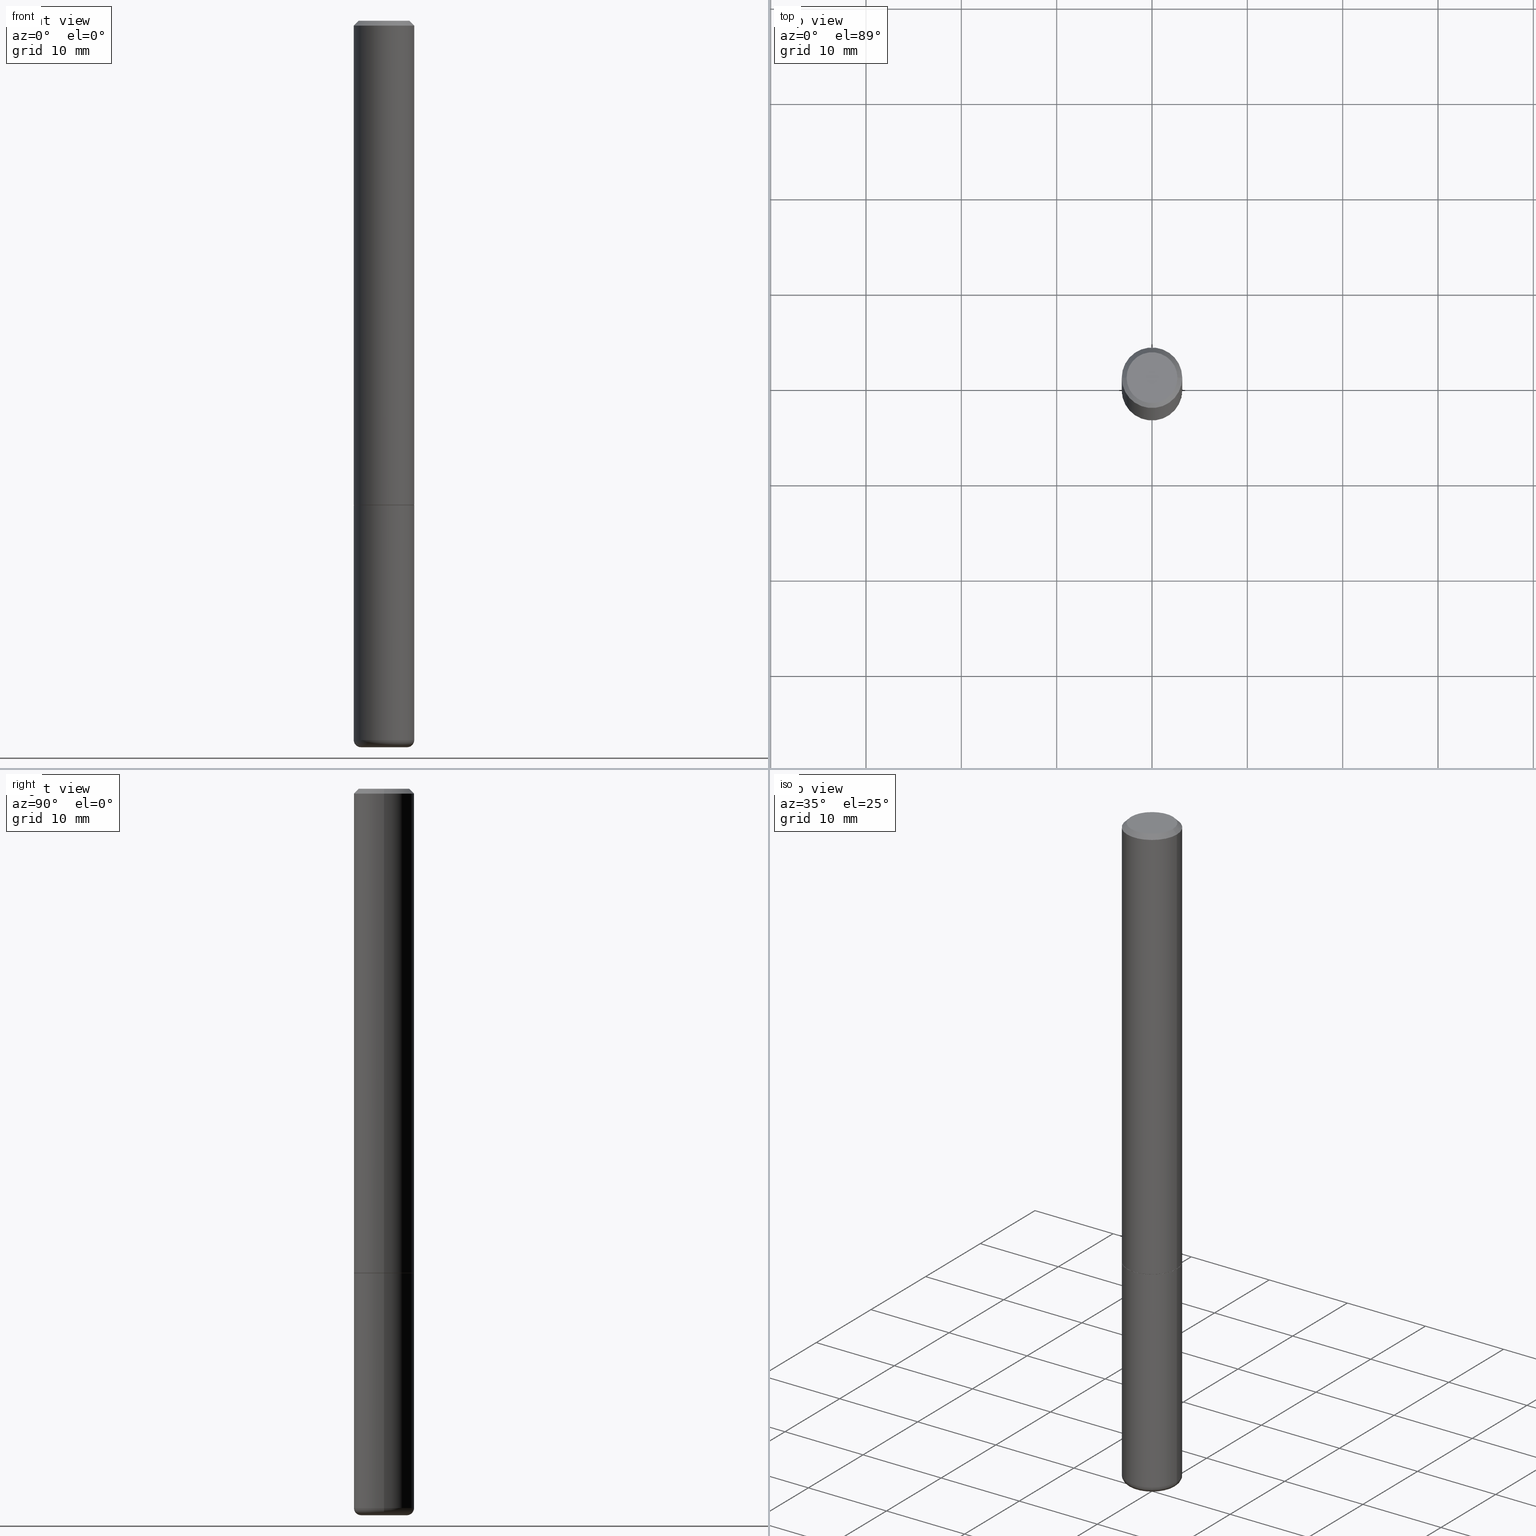
[diagram: canonical four-view strip — front | top / right | iso, engineering-drawing reading convention]
A machine part, canonical four-view strip (front | top / right | iso — engineering-drawing reading convention). The complete STEP part file that produces these views, byte-faithful:
ISO-10303-21;
HEADER;
FILE_DESCRIPTION (( 'STEP AP203' ),
    '1' );
FILE_NAME ('77135.STEP',
    '2024-03-06T16:07:11',
    ( '' ),
    ( '' ),
    'SwSTEP 2.0',
    'SolidWorks 2023',
    '' );
FILE_SCHEMA (( 'CONFIG_CONTROL_DESIGN' ));
ENDSEC;

DATA;
#1 = CARTESIAN_POINT ( 'NONE',  ( 4.890937612370273194E-29, -6.982962677686291165E-15, -2.000000000000000000 ) ) ;
#2 = EDGE_CURVE ( 'NONE', #89, #54, #96, .T. ) ;
#3 = CLOSED_SHELL ( 'NONE', ( #44, #114, #267, #366, #16, #149 ) ) ;
#4 = AXIS2_PLACEMENT_3D ( 'NONE', #282, #88, #214 ) ;
#5 = LOCAL_TIME ( 11, 7, 11.00000000000000000, #242 ) ;
#6 = CARTESIAN_POINT ( 'NONE',  ( 1.938465436436783344E-28, 6.779332785560663116E-15, -2.999999999999999556 ) ) ;
#7 = APPROVAL_ROLE ( '' ) ;
#8 = FACE_OUTER_BOUND ( 'NONE', #107, .T. ) ;
#9 = DATE_AND_TIME ( #84, #83 ) ;
#10 = CARTESIAN_POINT ( 'NONE',  ( 4.890937612370273194E-29, -6.982962677686291165E-15, -2.000000000000000000 ) ) ;
#11 = SHAPE_DEFINITION_REPRESENTATION ( #272, #253 ) ;
#12 = ORIENTED_EDGE ( 'NONE', *, *, #363, .F. ) ;
#13 = CONICAL_SURFACE ( 'NONE', #383, 0.1249999999999999584, 0.7853981633974460586 ) ;
#14 = APPROVAL_PERSON_ORGANIZATION ( #174, #387, #370 ) ;
#15 = APPROVAL_DATE_TIME ( #170, #387 ) ;
#16 = ADVANCED_FACE ( 'NONE', ( #179 ), #215, .T. ) ;
#17 = ORIENTED_EDGE ( 'NONE', *, *, #59, .T. ) ;
#18 = PERSON_AND_ORGANIZATION ( #152, #380 ) ;
#19 = ORIENTED_EDGE ( 'NONE', *, *, #241, .F. ) ;
#20 = DIRECTION ( 'NONE',  ( -2.445468806185136597E-29, 3.491481338843145583E-15, 1.000000000000000000 ) ) ;
#21 = DIMENSIONAL_EXPONENTS ( 1.000000000000000000, 0.000000000000000000, 0.000000000000000000, 0.000000000000000000, 0.000000000000000000, 0.000000000000000000, 0.000000000000000000 ) ;
#22 = ADVANCED_FACE ( 'NONE', ( #25 ), #147, .T. ) ;
#23 = ORIENTED_EDGE ( 'NONE', *, *, #59, .F. ) ;
#24 = AXIS2_PLACEMENT_3D ( 'NONE', #1, #301, #129 ) ;
#25 = FACE_OUTER_BOUND ( 'NONE', #273, .T. ) ;
#26 = ORIENTED_EDGE ( 'NONE', *, *, #363, .T. ) ;
#27 = AXIS2_PLACEMENT_3D ( 'NONE', #10, #159, #35 ) ;
#28 = CARTESIAN_POINT ( 'NONE',  ( 7.263042354369856275E-29, -1.036969957636414298E-14, -2.970000000000000195 ) ) ;
#29 = DIRECTION ( 'NONE',  ( 1.000000000000000000, -6.982962677686267499E-15, 4.874400871621236533E-29 ) ) ;
#30 = ORIENTED_EDGE ( 'NONE', *, *, #221, .F. ) ;
#31 = CARTESIAN_POINT ( 'NONE',  ( -0.1250000000000000000, -7.788152707325093026E-15, -2.000000000000000444 ) ) ;
#32 = AXIS2_PLACEMENT_3D ( 'NONE', #153, #295, #223 ) ;
#33 = EDGE_CURVE ( 'NONE', #89, #216, #57, .T. ) ;
#34 = CARTESIAN_POINT ( 'NONE',  ( 7.263042354369856275E-29, -1.036969957636414298E-14, -2.970000000000000195 ) ) ;
#35 = DIRECTION ( 'NONE',  ( 1.000000000000000000, -6.982962677686265922E-15, 4.876176775795935793E-29 ) ) ;
#36 = DIRECTION ( 'NONE',  ( 1.000000000000000000, -6.982962677686273810E-15, 0.000000000000000000 ) ) ;
#37 = PERSON_AND_ORGANIZATION ( #152, #380 ) ;
#38 = CONICAL_SURFACE ( 'NONE', #302, 0.1239999999999999991, 0.7853981633976787613 ) ;
#39 = DIRECTION ( 'NONE',  ( -2.445468806185136597E-29, 3.491481338843145583E-15, 1.000000000000000000 ) ) ;
#40 = CALENDAR_DATE ( 2024, 6, 3 ) ;
#41 = CARTESIAN_POINT ( 'NONE',  ( -0.1050000000000000377, 7.681258945454890818E-16, -5.122214988121018004E-17 ) ) ;
#42 = DATE_AND_TIME ( #40, #5 ) ;
#43 = LINE ( 'NONE', #274, #111 ) ;
#44 = ADVANCED_FACE ( 'NONE', ( #351 ), #353, .T. ) ;
#45 = CALENDAR_DATE ( 2024, 6, 3 ) ;
#46 = ORIENTED_EDGE ( 'NONE', *, *, #255, .T. ) ;
#47 = LOCAL_TIME ( 11, 7, 11.00000000000000000, #108 ) ;
#48 = DIRECTION ( 'NONE',  ( 1.000000000000000000, 0.000000000000000000, 0.000000000000000000 ) ) ;
#49 = EDGE_LOOP ( 'NONE', ( #256, #238, #112, #106 ) ) ;
#50 = DIRECTION ( 'NONE',  ( -2.445468806185136597E-29, 3.491481338843145583E-15, 1.000000000000000000 ) ) ;
#51 = ORIENTED_EDGE ( 'NONE', *, *, #2, .F. ) ;
#52 = CARTESIAN_POINT ( 'NONE',  ( 0.1249999999999998473, -1.124256991107492474E-14, -2.970000000000000195 ) ) ;
#53 = ORIENTED_EDGE ( 'NONE', *, *, #33, .F. ) ;
#54 = VERTEX_POINT ( 'NONE', #63 ) ;
#55 = FACE_OUTER_BOUND ( 'NONE', #49, .T. ) ;
#56 = AXIS2_PLACEMENT_3D ( 'NONE', #368, #39, #131 ) ;
#57 = CIRCLE ( 'NONE', #181, 0.1250000000000002498 ) ;
#58 = CIRCLE ( 'NONE', #373, 0.1250000000000000000 ) ;
#59 = EDGE_CURVE ( 'NONE', #343, #345, #233, .T. ) ;
#60 = EDGE_CURVE ( 'NONE', #216, #89, #199, .T. ) ;
#61 = DIRECTION ( 'NONE',  ( -2.445468806185136597E-29, 3.491481338843145583E-15, 1.000000000000000000 ) ) ;
#62 = CC_DESIGN_SECURITY_CLASSIFICATION ( #138, ( #99 ) ) ;
#63 = CARTESIAN_POINT ( 'NONE',  ( -0.1249999999999999584, 8.030407079339200406E-16, -0.02000000000000006287 ) ) ;
#64 = CYLINDRICAL_SURFACE ( 'NONE', #200, 0.1250000000000000000 ) ;
#65 = ORIENTED_EDGE ( 'NONE', *, *, #415, .T. ) ;
#66 = CARTESIAN_POINT ( 'NONE',  ( 4.890937612370288923E-31, -6.982962677686312563E-17, -0.02000000000000006287 ) ) ;
#67 = CARTESIAN_POINT ( 'NONE',  ( 0.1239999999999999991, -7.848850049719387701E-15, -2.000000000000000000 ) ) ;
#68 = DIRECTION ( 'NONE',  ( -1.000000000000000000, 6.982962677686267499E-15, 0.000000000000000000 ) ) ;
#69 = CIRCLE ( 'NONE', #361, 0.1250000000000000000 ) ;
#70 = CARTESIAN_POINT ( 'NONE',  ( 7.332110811570581229E-16, 0.1050000000000000377, -3.922166155191328542E-16 ) ) ;
#71 = PLANE ( 'NONE',  #292 ) ;
#72 = CARTESIAN_POINT ( 'NONE',  ( 0.1249999999999999584, -9.273918764983043491E-16, -0.02000000000000006287 ) ) ;
#73 = AXIS2_PLACEMENT_3D ( 'NONE', #294, #252, #91 ) ;
#74 = CIRCLE ( 'NONE', #261, 0.1250000000000000000 ) ;
#75 = CARTESIAN_POINT ( 'NONE',  ( 7.263042354369856275E-29, -1.036969957636414298E-14, -2.970000000000000195 ) ) ;
#76 = ADVANCED_FACE ( 'NONE', ( #8 ), #71, .F. ) ;
#77 = APPROVAL_STATUS ( 'not_yet_approved' ) ;
#78 = PERSON_AND_ORGANIZATION_ROLE ( 'creator' ) ;
#79 = DIRECTION ( 'NONE',  ( 1.000000000000000000, -6.982962677686266711E-15, 4.876176775795935232E-29 ) ) ;
#80 = COORDINATED_UNIVERSAL_TIME_OFFSET ( 5, 0, .BEHIND. ) ;
#81 = VERTEX_POINT ( 'NONE', #304 ) ;
#82 = CIRCLE ( 'NONE', #150, 0.09499999999999998723 ) ;
#83 = LOCAL_TIME ( 11, 7, 11.00000000000000000, #164 ) ;
#84 = CALENDAR_DATE ( 2024, 6, 3 ) ;
#85 = EDGE_CURVE ( 'NONE', #137, #54, #191, .T. ) ;
#86 = ORIENTED_EDGE ( 'NONE', *, *, #160, .F. ) ;
#87 = VERTEX_POINT ( 'NONE', #103 ) ;
#88 = DIRECTION ( 'NONE',  ( 2.445468806185136597E-29, -3.491481338843145583E-15, -1.000000000000000000 ) ) ;
#89 = VERTEX_POINT ( 'NONE', #224 ) ;
#90 = AXIS2_PLACEMENT_3D ( 'NONE', #28, #61, #317 ) ;
#91 = DIRECTION ( 'NONE',  ( 1.000000000000000000, -6.982962677686266711E-15, 4.876176775795935232E-29 ) ) ;
#92 = DIRECTION ( 'NONE',  ( -2.445468806185136597E-29, 3.491481338843145583E-15, 1.000000000000000000 ) ) ;
#93 = CONICAL_SURFACE ( 'NONE', #32, 0.1239999999999999991, 0.7853981633976787613 ) ;
#94 = FACE_OUTER_BOUND ( 'NONE', #372, .T. ) ;
#95 = DIRECTION ( 'NONE',  ( -2.445468806185136597E-29, 3.491481338843145583E-15, 1.000000000000000000 ) ) ;
#96 = LINE ( 'NONE', #177, #334 ) ;
#97 = CARTESIAN_POINT ( 'NONE',  ( 4.890937612370273754E-29, -6.982962677686291954E-15, -2.000000000000000444 ) ) ;
#98 = AXIS2_PLACEMENT_3D ( 'NONE', #104, #124, #260 ) ;
#99 = PRODUCT_DEFINITION_FORMATION_WITH_SPECIFIED_SOURCE ( 'ANY', '', #316, .NOT_KNOWN. ) ;
#100 = DIRECTION ( 'NONE',  ( 1.000000000000000000, -6.982962677686262766E-15, 0.000000000000000000 ) ) ;
#101 = PRODUCT_RELATED_PRODUCT_CATEGORY ( 'detail', '', ( #316 ) ) ;
#102 = CARTESIAN_POINT ( 'NONE',  ( 0.1249999999999999584, -9.273918764983043491E-16, -0.02000000000000006287 ) ) ;
#103 = CARTESIAN_POINT ( 'NONE',  ( 0.1250000000000000000, -7.855833012397075293E-15, -2.000000000000000444 ) ) ;
#104 = CARTESIAN_POINT ( 'NONE',  ( -0.09499999999999998723, -9.694683977392047997E-15, -2.970000000000000195 ) ) ;
#105 = CIRCLE ( 'NONE', #155, 0.1050000000000000377 ) ;
#106 = ORIENTED_EDGE ( 'NONE', *, *, #348, .T. ) ;
#107 = EDGE_LOOP ( 'NONE', ( #65, #376 ) ) ;
#108 = COORDINATED_UNIVERSAL_TIME_OFFSET ( 5, 0, .BEHIND. ) ;
#109 = ORIENTED_EDGE ( 'NONE', *, *, #180, .T. ) ;
#110 = DIRECTION ( 'NONE',  ( 1.000000000000000000, -6.982962677686267499E-15, 4.874400871621236533E-29 ) ) ;
#111 = VECTOR ( 'NONE', #404, 39.37007874015748143 ) ;
#112 = ORIENTED_EDGE ( 'NONE', *, *, #85, .T. ) ;
#113 = VERTEX_POINT ( 'NONE', #72 ) ;
#114 = ADVANCED_FACE ( 'NONE', ( #231 ), #379, .T. ) ;
#115 = ADVANCED_FACE ( 'NONE', ( #264 ), #38, .T. ) ;
#116 = APPROVAL_PERSON_ORGANIZATION ( #18, #354, #134 ) ;
#117 = EDGE_CURVE ( 'NONE', #345, #315, #209, .T. ) ;
#118 = DIRECTION ( 'NONE',  ( 1.000000000000000000, -6.982962677686266711E-15, 4.876176775795935793E-29 ) ) ;
#119 = CARTESIAN_POINT ( 'NONE',  ( 0.000000000000000000, 0.000000000000000000, 0.000000000000000000 ) ) ;
#120 = AXIS2_PLACEMENT_3D ( 'NONE', #141, #20, #79 ) ;
#121 = DIRECTION ( 'NONE',  ( 1.000000000000000000, -6.982962677686266711E-15, 4.876176775795935793E-29 ) ) ;
#122 = ORIENTED_EDGE ( 'NONE', *, *, #226, .F. ) ;
#123 = LINE ( 'NONE', #102, #171 ) ;
#124 = DIRECTION ( 'NONE',  ( 7.105427357601001859E-15, 1.000000000000000000, -3.491481338843145583E-15 ) ) ;
#125 = CC_DESIGN_PERSON_AND_ORGANIZATION_ASSIGNMENT ( #312, #78, ( #99 ) ) ;
#126 = DIRECTION ( 'NONE',  ( -2.445468806185136597E-29, 3.491481338843145583E-15, 1.000000000000000000 ) ) ;
#127 = AXIS2_PLACEMENT_3D ( 'NONE', #97, #126, #395 ) ;
#128 = CC_DESIGN_APPROVAL ( #387, ( #99 ) ) ;
#129 = DIRECTION ( 'NONE',  ( 1.000000000000000000, -6.982962677686262766E-15, 0.000000000000000000 ) ) ;
#130 = PERSON_AND_ORGANIZATION_ROLE ( 'classification_officer' ) ;
#131 = DIRECTION ( 'NONE',  ( 1.000000000000000000, -6.982962677686264344E-15, 0.000000000000000000 ) ) ;
#132 = ADVANCED_FACE ( 'NONE', ( #198 ), #358, .F. ) ;
#133 = DIRECTION ( 'NONE',  ( -2.445468806185136597E-29, 3.491481338843145583E-15, 1.000000000000000000 ) ) ;
#134 = APPROVAL_ROLE ( '' ) ;
#135 = VECTOR ( 'NONE', #418, 39.37007874015748143 ) ;
#136 = AXIS2_PLACEMENT_3D ( 'NONE', #197, #151, #48 ) ;
#137 = VERTEX_POINT ( 'NONE', #41 ) ;
#138 = SECURITY_CLASSIFICATION ( '', '', #394 ) ;
#139 = CARTESIAN_POINT ( 'NONE',  ( -0.09499999999999998723, -9.640474787110681925E-15, -2.999999999999999556 ) ) ;
#140 = ORIENTED_EDGE ( 'NONE', *, *, #245, .F. ) ;
#141 = CARTESIAN_POINT ( 'NONE',  ( 0.000000000000000000, 0.000000000000000000, 0.000000000000000000 ) ) ;
#142 = COORDINATED_UNIVERSAL_TIME_OFFSET ( 5, 0, .BEHIND. ) ;
#143 = ORIENTED_EDGE ( 'NONE', *, *, #389, .T. ) ;
#144 = ORIENTED_EDGE ( 'NONE', *, *, #300, .T. ) ;
#145 = DIRECTION ( 'NONE',  ( 2.438088387897960049E-29, -3.491481338843145188E-15, -1.000000000000000000 ) ) ;
#146 = VECTOR ( 'NONE', #385, 39.37007874015748143 ) ;
#147 = CYLINDRICAL_SURFACE ( 'NONE', #73, 0.1250000000000001110 ) ;
#148 = DIRECTION ( 'NONE',  ( -2.445468806185136597E-29, 3.491481338843145583E-15, 1.000000000000000000 ) ) ;
#149 = ADVANCED_FACE ( 'NONE', ( #397 ), #162, .T. ) ;
#150 = AXIS2_PLACEMENT_3D ( 'NONE', #263, #298, #362 ) ;
#151 = DIRECTION ( 'NONE',  ( 0.000000000000000000, 0.000000000000000000, 1.000000000000000000 ) ) ;
#152 = PERSON ( 'UNSPECIFIED', 'UNSPECIFIED', 'UNSPECIFIED', ('UNSPECIFIED'), ('UNSPECIFIED'), ('UNSPECIFIED') ) ;
#153 = CARTESIAN_POINT ( 'NONE',  ( 4.890937612370273194E-29, -6.982962677686291165E-15, -2.000000000000000000 ) ) ;
#154 = EDGE_LOOP ( 'NONE', ( #346, #284, #320, #377 ) ) ;
#155 = AXIS2_PLACEMENT_3D ( 'NONE', #239, #369, #110 ) ;
#156 = DIRECTION ( 'NONE',  ( -2.445468806185136597E-29, 3.491481338843145583E-15, 1.000000000000000000 ) ) ;
#157 = CC_DESIGN_PERSON_AND_ORGANIZATION_ASSIGNMENT ( #207, #271, ( #316 ) ) ;
#158 = DIRECTION ( 'NONE',  ( -2.445468806185136597E-29, 3.491481338843145583E-15, 1.000000000000000000 ) ) ;
#159 = DIRECTION ( 'NONE',  ( -2.438088387897960049E-29, 3.491481338843145188E-15, 1.000000000000000000 ) ) ;
#160 = EDGE_CURVE ( 'NONE', #315, #407, #74, .T. ) ;
#161 = CARTESIAN_POINT ( 'NONE',  ( 1.252621697202263706E-45, -1.788411804456536750E-31, -5.122214988120493535E-17 ) ) ;
#162 = PLANE ( 'NONE',  #192 ) ;
#163 = EDGE_CURVE ( 'NONE', #186, #81, #165, .T. ) ;
#164 = COORDINATED_UNIVERSAL_TIME_OFFSET ( 5, 0, .BEHIND. ) ;
#165 = CIRCLE ( 'NONE', #24, 0.1239999999999999991 ) ;
#166 = DIRECTION ( 'NONE',  ( -0.7071067811867103314, 7.493145998870941073E-15, 0.7071067811863844810 ) ) ;
#167 = PERSON_AND_ORGANIZATION ( #152, #380 ) ;
#168 = APPROVAL_DATE_TIME ( #9, #268 ) ;
#169 = ORIENTED_EDGE ( 'NONE', *, *, #160, .T. ) ;
#170 = DATE_AND_TIME ( #402, #406 ) ;
#171 = VECTOR ( 'NONE', #413, 39.37007874015748143 ) ;
#172 = ORIENTED_EDGE ( 'NONE', *, *, #117, .T. ) ;
#173 = DIRECTION ( 'NONE',  ( 1.000000000000000000, -6.982962677686262766E-15, 0.000000000000000000 ) ) ;
#174 = PERSON_AND_ORGANIZATION ( #152, #380 ) ;
#175 = EDGE_LOOP ( 'NONE', ( #51, #399, #144, #286 ) ) ;
#176 = PLANE ( 'NONE',  #217 ) ;
#177 = CARTESIAN_POINT ( 'NONE',  ( -0.1250000000000001110, 8.881784197001260212E-16, -6.148668862818637832E-30 ) ) ;
#178 = EDGE_LOOP ( 'NONE', ( #169, #279, #30, #140 ) ) ;
#179 = FACE_OUTER_BOUND ( 'NONE', #381, .T. ) ;
#180 = EDGE_CURVE ( 'NONE', #345, #343, #82, .T. ) ;
#181 = AXIS2_PLACEMENT_3D ( 'NONE', #322, #92, #220 ) ;
#182 = DIRECTION ( 'NONE',  ( 1.000000000000000000, -6.982962677686262766E-15, 0.000000000000000000 ) ) ;
#183 = AXIS2_PLACEMENT_3D ( 'NONE', #66, #257, #262 ) ;
#184 = AXIS2_PLACEMENT_3D ( 'NONE', #210, #50, #173 ) ;
#185 = APPROVAL_PERSON_ORGANIZATION ( #237, #268, #7 ) ;
#186 = VERTEX_POINT ( 'NONE', #67 ) ;
#187 = CARTESIAN_POINT ( 'NONE',  ( -0.1249999999999998473, -9.481521156664020907E-15, -2.970000000000000195 ) ) ;
#188 = ORIENTED_EDGE ( 'NONE', *, *, #410, .T. ) ;
#189 = CARTESIAN_POINT ( 'NONE',  ( 4.890937612370288923E-31, -6.982962677686312563E-17, -0.02000000000000006287 ) ) ;
#190 = EDGE_CURVE ( 'NONE', #81, #89, #393, .T. ) ;
#191 = LINE ( 'NONE', #331, #135 ) ;
#192 = AXIS2_PLACEMENT_3D ( 'NONE', #6, #333, #365 ) ;
#193 = DIRECTION ( 'NONE',  ( 1.000000000000000000, -6.982962677686267499E-15, 0.000000000000000000 ) ) ;
#194 = CARTESIAN_POINT ( 'NONE',  ( 0.09499999999999998723, -1.103308103074433801E-14, -2.970000000000000195 ) ) ;
#195 = DIRECTION ( 'NONE',  ( -2.445468806185136597E-29, 3.491481338843145583E-15, 1.000000000000000000 ) ) ;
#196 = DIRECTION ( 'NONE',  ( -1.000000000000000000, 6.982962677686265922E-15, -4.876176775795935793E-29 ) ) ;
#197 = CARTESIAN_POINT ( 'NONE',  ( 0.000000000000000000, 0.000000000000000000, 0.000000000000000000 ) ) ;
#198 = FACE_OUTER_BOUND ( 'NONE', #375, .T. ) ;
#199 = CIRCLE ( 'NONE', #56, 0.1250000000000002498 ) ;
#200 = AXIS2_PLACEMENT_3D ( 'NONE', #119, #158, #121 ) ;
#201 = CC_DESIGN_PERSON_AND_ORGANIZATION_ASSIGNMENT ( #167, #130, ( #138 ) ) ;
#202 = DIRECTION ( 'NONE',  ( 1.000000000000000000, -6.982962677686262766E-15, 0.000000000000000000 ) ) ;
#203 = APPLICATION_PROTOCOL_DEFINITION ( 'international standard', 'config_control_design', 1994, #330 ) ;
#204 = DATE_TIME_ROLE ( 'classification_date' ) ;
#205 = EDGE_LOOP ( 'NONE', ( #249, #412 ) ) ;
#206 = PRODUCT_DEFINITION ( 'UNKNOWN', '', #99, #285 ) ;
#207 = PERSON_AND_ORGANIZATION ( #152, #380 ) ;
#208 = CLOSED_SHELL ( 'NONE', ( #350, #22, #378, #335, #276, #115, #132, #76 ) ) ;
#209 = CIRCLE ( 'NONE', #352, 0.02999999999999969705 ) ;
#210 = CARTESIAN_POINT ( 'NONE',  ( 4.890937612370273194E-29, -6.982962677686291165E-15, -2.000000000000000000 ) ) ;
#211 = ORIENTED_EDGE ( 'NONE', *, *, #163, .F. ) ;
#212 = ORIENTED_EDGE ( 'NONE', *, *, #288, .F. ) ;
#213 = EDGE_LOOP ( 'NONE', ( #212, #143, #26, #371 ) ) ;
#214 = DIRECTION ( 'NONE',  ( -1.000000000000000000, 6.982962677686267499E-15, 0.000000000000000000 ) ) ;
#215 = TOROIDAL_SURFACE ( 'NONE', #90, 0.09499999999999998723, 0.02999999999999970399 ) ;
#216 = VERTEX_POINT ( 'NONE', #303 ) ;
#217 = AXIS2_PLACEMENT_3D ( 'NONE', #278, #145, #344 ) ;
#218 = MANIFOLD_SOLID_BREP ( 'Body-Move/Copy2[1]', #3 ) ;
#219 = CIRCLE ( 'NONE', #183, 0.1249999999999999584 ) ;
#220 = DIRECTION ( 'NONE',  ( 1.000000000000000000, -6.982962677686264344E-15, 0.000000000000000000 ) ) ;
#221 = EDGE_CURVE ( 'NONE', #87, #384, #321, .T. ) ;
#222 = MANIFOLD_SOLID_BREP ( 'Body-Move/Copy2[2]', #208 ) ;
#223 = DIRECTION ( 'NONE',  ( 1.000000000000000000, -6.982962677686262766E-15, 0.000000000000000000 ) ) ;
#224 = CARTESIAN_POINT ( 'NONE',  ( -0.1250000000000002776, -2.636471991862024185E-15, -1.999000000000000110 ) ) ;
#225 = CARTESIAN_POINT ( 'NONE',  ( 4.890937612370288923E-31, -6.982962677686312563E-17, -0.02000000000000006287 ) ) ;
#226 = EDGE_CURVE ( 'NONE', #343, #407, #250, .T. ) ;
#227 = LINE ( 'NONE', #388, #280 ) ;
#228 = CC_DESIGN_APPROVAL ( #354, ( #206 ) ) ;
#229 = DIRECTION ( 'NONE',  ( -6.982962677686266711E-15, -1.000000000000000000, 3.491481338843145583E-15 ) ) ;
#230 = APPLICATION_PROTOCOL_DEFINITION ( 'international standard', 'config_control_design', 1994, #287 ) ;
#231 = FACE_OUTER_BOUND ( 'NONE', #289, .T. ) ;
#232 = DIRECTION ( 'NONE',  ( -2.445468806185136597E-29, 3.491481338843145583E-15, 1.000000000000000000 ) ) ;
#233 = CIRCLE ( 'NONE', #360, 0.09499999999999998723 ) ;
#234 = PERSON_AND_ORGANIZATION_ROLE ( 'creator' ) ;
#235 = CIRCLE ( 'NONE', #293, 0.1050000000000000377 ) ;
#236 = FACE_OUTER_BOUND ( 'NONE', #205, .T. ) ;
#237 = PERSON_AND_ORGANIZATION ( #152, #380 ) ;
#238 = ORIENTED_EDGE ( 'NONE', *, *, #415, .F. ) ;
#239 = CARTESIAN_POINT ( 'NONE',  ( 1.252621697202263706E-45, -1.788411804456536750E-31, -5.122214988120493535E-17 ) ) ;
#240 = APPROVAL_STATUS ( 'not_yet_approved' ) ;
#241 = EDGE_CURVE ( 'NONE', #407, #315, #58, .T. ) ;
#242 = COORDINATED_UNIVERSAL_TIME_OFFSET ( 5, 0, .BEHIND. ) ;
#243 = ORIENTED_EDGE ( 'NONE', *, *, #410, .F. ) ;
#244 = CC_DESIGN_APPROVAL ( #268, ( #138 ) ) ;
#245 = EDGE_CURVE ( 'NONE', #315, #87, #227, .T. ) ;
#246 = CARTESIAN_POINT ( 'NONE',  ( 4.890937612370273754E-29, -6.982962677686291954E-15, -2.000000000000000444 ) ) ;
#247 = ORIENTED_EDGE ( 'NONE', *, *, #163, .T. ) ;
#248 = ORIENTED_EDGE ( 'NONE', *, *, #2, .T. ) ;
#249 = ORIENTED_EDGE ( 'NONE', *, *, #221, .T. ) ;
#250 = CIRCLE ( 'NONE', #98, 0.02999999999999969705 ) ;
#251 = CARTESIAN_POINT ( 'NONE',  ( 7.336406418555408669E-29, -1.047444401652943478E-14, -2.999999999999999556 ) ) ;
#252 = DIRECTION ( 'NONE',  ( -2.445468806185136597E-29, 3.491481338843145583E-15, 1.000000000000000000 ) ) ;
#253 = ADVANCED_BREP_SHAPE_REPRESENTATION ( '77135', ( #218, #222, #136 ), #341 ) ;
#254 =( CONVERSION_BASED_UNIT ( 'INCH', #297 ) LENGTH_UNIT ( ) NAMED_UNIT ( #21 ) );
#255 = EDGE_CURVE ( 'NONE', #81, #186, #319, .T. ) ;
#256 = ORIENTED_EDGE ( 'NONE', *, *, #389, .F. ) ;
#257 = DIRECTION ( 'NONE',  ( -2.445468806185136597E-29, 3.491481338843145583E-15, 1.000000000000000000 ) ) ;
#258 = DIRECTION ( 'NONE',  ( -2.445468806185136597E-29, 3.491481338843145583E-15, 1.000000000000000000 ) ) ;
#259 = DIRECTION ( 'NONE',  ( 2.445468806185136597E-29, -3.491481338843145583E-15, -1.000000000000000000 ) ) ;
#260 = DIRECTION ( 'NONE',  ( -1.000000000000000000, 7.105427357600997914E-15, 0.000000000000000000 ) ) ;
#261 = AXIS2_PLACEMENT_3D ( 'NONE', #34, #156, #296 ) ;
#262 = DIRECTION ( 'NONE',  ( 1.000000000000000000, -6.982962677686267499E-15, 0.000000000000000000 ) ) ;
#263 = CARTESIAN_POINT ( 'NONE',  ( 7.336406418555408669E-29, -1.047444401652943478E-14, -2.999999999999999556 ) ) ;
#264 = FACE_OUTER_BOUND ( 'NONE', #401, .T. ) ;
#265 = PERSON_AND_ORGANIZATION ( #152, #380 ) ;
#266 = DIRECTION ( 'NONE',  ( 1.000000000000000000, -6.982962677686264344E-15, 4.883557194083112340E-29 ) ) ;
#267 = ADVANCED_FACE ( 'NONE', ( #236 ), #176, .F. ) ;
#268 = APPROVAL ( #240, 'UNSPECIFIED' ) ;
#269 = ORIENTED_EDGE ( 'NONE', *, *, #60, .F. ) ;
#270 = FACE_OUTER_BOUND ( 'NONE', #175, .T. ) ;
#271 = PERSON_AND_ORGANIZATION_ROLE ( 'design_owner' ) ;
#272 = PRODUCT_DEFINITION_SHAPE ( 'NONE', 'NONE',  #206 ) ;
#273 = EDGE_LOOP ( 'NONE', ( #323, #248, #12, #291 ) ) ;
#274 = CARTESIAN_POINT ( 'NONE',  ( 0.1250000000000001110, -8.728703347107841277E-16, 6.095220969744924646E-30 ) ) ;
#275 = PERSON_AND_ORGANIZATION_ROLE ( 'design_supplier' ) ;
#276 = ADVANCED_FACE ( 'NONE', ( #270 ), #311, .T. ) ;
#277 = ORIENTED_EDGE ( 'NONE', *, *, #226, .T. ) ;
#278 = CARTESIAN_POINT ( 'NONE',  ( 4.890937612370273754E-29, -6.982962677686291954E-15, -2.000000000000000444 ) ) ;
#279 = ORIENTED_EDGE ( 'NONE', *, *, #403, .T. ) ;
#280 = VECTOR ( 'NONE', #314, 39.37007874015748143 ) ;
#281 = ORIENTED_EDGE ( 'NONE', *, *, #255, .F. ) ;
#282 = CARTESIAN_POINT ( 'NONE',  ( 4.890937612370288923E-31, -6.982962677686312563E-17, -0.02000000000000006287 ) ) ;
#283 = CC_DESIGN_PERSON_AND_ORGANIZATION_ASSIGNMENT ( #37, #234, ( #206 ) ) ;
#284 = ORIENTED_EDGE ( 'NONE', *, *, #241, .T. ) ;
#285 = DESIGN_CONTEXT ( 'detailed design', #330, 'design' ) ;
#286 = ORIENTED_EDGE ( 'NONE', *, *, #348, .F. ) ;
#287 = APPLICATION_CONTEXT ( 'configuration controlled 3d designs of mechanical parts and assemblies' ) ;
#288 = EDGE_CURVE ( 'NONE', #342, #137, #105, .T. ) ;
#289 = EDGE_LOOP ( 'NONE', ( #109, #277, #86, #313 ) ) ;
#290 = CARTESIAN_POINT ( 'NONE',  ( 0.1239999999999999991, -7.848850049719387701E-15, -2.000000000000000000 ) ) ;
#291 = ORIENTED_EDGE ( 'NONE', *, *, #300, .F. ) ;
#292 = AXIS2_PLACEMENT_3D ( 'NONE', #70, #391, #196 ) ;
#293 = AXIS2_PLACEMENT_3D ( 'NONE', #161, #357, #29 ) ;
#294 = CARTESIAN_POINT ( 'NONE',  ( 0.000000000000000000, 0.000000000000000000, 0.000000000000000000 ) ) ;
#295 = DIRECTION ( 'NONE',  ( -2.445468806185136597E-29, 3.491481338843145583E-15, 1.000000000000000000 ) ) ;
#296 = DIRECTION ( 'NONE',  ( 1.000000000000000000, -6.982962677686262766E-15, 0.000000000000000000 ) ) ;
#297 = LENGTH_MEASURE_WITH_UNIT ( LENGTH_MEASURE( 0.02539999999999999897 ), #327 );
#298 = DIRECTION ( 'NONE',  ( -2.445468806185136597E-29, 3.491481338843145583E-15, 1.000000000000000000 ) ) ;
#299 = DIRECTION ( 'NONE',  ( 0.7071067811867103314, -2.468850131083963367E-15, 0.7071067811863844810 ) ) ;
#300 = EDGE_CURVE ( 'NONE', #216, #113, #43, .T. ) ;
#301 = DIRECTION ( 'NONE',  ( -2.445468806185136597E-29, 3.491481338843145583E-15, 1.000000000000000000 ) ) ;
#302 = AXIS2_PLACEMENT_3D ( 'NONE', #326, #133, #100 ) ;
#303 = CARTESIAN_POINT ( 'NONE',  ( 0.1250000000000002498, -7.852341531058233864E-15, -1.999000000000000110 ) ) ;
#304 = CARTESIAN_POINT ( 'NONE',  ( -0.1239999999999999991, -6.096591230995543750E-15, -2.000000000000000000 ) ) ;
#305 = CC_DESIGN_DATE_AND_TIME_ASSIGNMENT ( #400, #374, ( #206 ) ) ;
#306 = APPROVAL_DATE_TIME ( #396, #354 ) ;
#307 = ORIENTED_EDGE ( 'NONE', *, *, #190, .F. ) ;
#308 = EDGE_CURVE ( 'NONE', #384, #87, #69, .T. ) ;
#309 = CIRCLE ( 'NONE', #398, 0.1249999999999999584 ) ;
#310 = APPROVAL_STATUS ( 'not_yet_approved' ) ;
#311 = CYLINDRICAL_SURFACE ( 'NONE', #120, 0.1250000000000001110 ) ;
#312 = PERSON_AND_ORGANIZATION ( #152, #380 ) ;
#313 = ORIENTED_EDGE ( 'NONE', *, *, #117, .F. ) ;
#314 = DIRECTION ( 'NONE',  ( -2.445468806185136877E-29, 3.491481338843145188E-15, 1.000000000000000000 ) ) ;
#315 = VERTEX_POINT ( 'NONE', #52 ) ;
#316 = PRODUCT ( '77135', '77135', '', ( #336 ) ) ;
#317 = DIRECTION ( 'NONE',  ( 1.000000000000000000, -6.982962677686264344E-15, 4.883557194083112340E-29 ) ) ;
#318 = AXIS2_PLACEMENT_3D ( 'NONE', #324, #409, #118 ) ;
#319 = CIRCLE ( 'NONE', #184, 0.1239999999999999991 ) ;
#320 = ORIENTED_EDGE ( 'NONE', *, *, #245, .T. ) ;
#321 = CIRCLE ( 'NONE', #127, 0.1250000000000000000 ) ;
#322 = CARTESIAN_POINT ( 'NONE',  ( 4.888492143564088712E-29, -6.979471196347448158E-15, -1.999000000000000110 ) ) ;
#323 = ORIENTED_EDGE ( 'NONE', *, *, #60, .T. ) ;
#324 = CARTESIAN_POINT ( 'NONE',  ( 0.000000000000000000, 0.000000000000000000, 0.000000000000000000 ) ) ;
#325 = LINE ( 'NONE', #290, #414 ) ;
#326 = CARTESIAN_POINT ( 'NONE',  ( 4.890937612370273194E-29, -6.982962677686291165E-15, -2.000000000000000000 ) ) ;
#327 =( LENGTH_UNIT ( ) NAMED_UNIT ( * ) SI_UNIT ( $, .METRE. ) );
#328 = CARTESIAN_POINT ( 'NONE',  ( -0.1239999999999999991, -6.101889685343766941E-15, -2.000000000000000000 ) ) ;
#329 = CC_DESIGN_DATE_AND_TIME_ASSIGNMENT ( #42, #204, ( #138 ) ) ;
#330 = APPLICATION_CONTEXT ( 'configuration controlled 3d designs of mechanical parts and assemblies' ) ;
#331 = CARTESIAN_POINT ( 'NONE',  ( -0.1249999999999999584, 8.030407079339200406E-16, -0.02000000000000006287 ) ) ;
#332 = FACE_OUTER_BOUND ( 'NONE', #154, .T. ) ;
#333 = DIRECTION ( 'NONE',  ( 2.438088387897960049E-29, -3.491481338843145188E-15, -1.000000000000000000 ) ) ;
#334 = VECTOR ( 'NONE', #382, 39.37007874015748143 ) ;
#335 = ADVANCED_FACE ( 'NONE', ( #55 ), #405, .T. ) ;
#336 = MECHANICAL_CONTEXT ( 'NONE', #287, 'mechanical' ) ;
#337 = CARTESIAN_POINT ( 'NONE',  ( 7.263042354369856275E-29, -1.036969957636414298E-14, -2.970000000000000195 ) ) ;
#338 = CALENDAR_DATE ( 2024, 6, 3 ) ;
#339 = CARTESIAN_POINT ( 'NONE',  ( 0.1050000000000000377, -8.238720831321576644E-16, -5.122214988119949344E-17 ) ) ;
#340 = ORIENTED_EDGE ( 'NONE', *, *, #180, .F. ) ;
#341 =( GEOMETRIC_REPRESENTATION_CONTEXT ( 3 ) GLOBAL_UNCERTAINTY_ASSIGNED_CONTEXT ( ( #417 ) ) GLOBAL_UNIT_ASSIGNED_CONTEXT ( ( #254, #359, #392 ) ) REPRESENTATION_CONTEXT ( 'NONE', 'WORKASPACE' ) );
#342 = VERTEX_POINT ( 'NONE', #339 ) ;
#343 = VERTEX_POINT ( 'NONE', #139 ) ;
#344 = DIRECTION ( 'NONE',  ( -1.000000000000000000, 6.982962677686265922E-15, -4.876176775795935793E-29 ) ) ;
#345 = VERTEX_POINT ( 'NONE', #367 ) ;
#346 = ORIENTED_EDGE ( 'NONE', *, *, #403, .F. ) ;
#347 = VECTOR ( 'NONE', #166, 39.37007874015748854 ) ;
#348 = EDGE_CURVE ( 'NONE', #54, #113, #309, .T. ) ;
#349 = CC_DESIGN_PERSON_AND_ORGANIZATION_ASSIGNMENT ( #265, #275, ( #99 ) ) ;
#350 = ADVANCED_FACE ( 'NONE', ( #94 ), #93, .T. ) ;
#351 = FACE_OUTER_BOUND ( 'NONE', #178, .T. ) ;
#352 = AXIS2_PLACEMENT_3D ( 'NONE', #194, #229, #36 ) ;
#353 = CYLINDRICAL_SURFACE ( 'NONE', #318, 0.1250000000000000000 ) ;
#354 = APPROVAL ( #77, 'UNSPECIFIED' ) ;
#355 = LINE ( 'NONE', #386, #146 ) ;
#356 = EDGE_LOOP ( 'NONE', ( #340, #23 ) ) ;
#357 = DIRECTION ( 'NONE',  ( -2.445468806185136597E-29, 3.491481338843145583E-15, 1.000000000000000000 ) ) ;
#358 = PLANE ( 'NONE',  #27 ) ;
#359 =( NAMED_UNIT ( * ) PLANE_ANGLE_UNIT ( ) SI_UNIT ( $, .RADIAN. ) );
#360 = AXIS2_PLACEMENT_3D ( 'NONE', #251, #95, #364 ) ;
#361 = AXIS2_PLACEMENT_3D ( 'NONE', #246, #148, #182 ) ;
#362 = DIRECTION ( 'NONE',  ( 1.000000000000000000, -6.982962677686261977E-15, 0.000000000000000000 ) ) ;
#363 = EDGE_CURVE ( 'NONE', #113, #54, #219, .T. ) ;
#364 = DIRECTION ( 'NONE',  ( 1.000000000000000000, -6.982962677686261977E-15, 0.000000000000000000 ) ) ;
#365 = DIRECTION ( 'NONE',  ( -1.000000000000000000, 6.982962677686265922E-15, -4.876176775795935793E-29 ) ) ;
#366 = ADVANCED_FACE ( 'NONE', ( #332 ), #64, .T. ) ;
#367 = CARTESIAN_POINT ( 'NONE',  ( 0.09499999999999998723, -1.113782547090962980E-14, -2.999999999999999556 ) ) ;
#368 = CARTESIAN_POINT ( 'NONE',  ( 4.888492143564088712E-29, -6.979471196347448158E-15, -1.999000000000000110 ) ) ;
#369 = DIRECTION ( 'NONE',  ( -2.445468806185136597E-29, 3.491481338843145583E-15, 1.000000000000000000 ) ) ;
#370 = APPROVAL_ROLE ( '' ) ;
#371 = ORIENTED_EDGE ( 'NONE', *, *, #85, .F. ) ;
#372 = EDGE_LOOP ( 'NONE', ( #247, #411, #269, #243 ) ) ;
#373 = AXIS2_PLACEMENT_3D ( 'NONE', #75, #258, #202 ) ;
#374 = DATE_TIME_ROLE ( 'creation_date' ) ;
#375 = EDGE_LOOP ( 'NONE', ( #211, #281 ) ) ;
#376 = ORIENTED_EDGE ( 'NONE', *, *, #288, .T. ) ;
#377 = ORIENTED_EDGE ( 'NONE', *, *, #308, .F. ) ;
#378 = ADVANCED_FACE ( 'NONE', ( #416 ), #13, .T. ) ;
#379 = TOROIDAL_SURFACE ( 'NONE', #390, 0.09499999999999998723, 0.02999999999999970399 ) ;
#380 = ORGANIZATION ( 'UNSPECIFIED', 'UNSPECIFIED', '' ) ;
#381 = EDGE_LOOP ( 'NONE', ( #122, #17, #172, #19 ) ) ;
#382 = DIRECTION ( 'NONE',  ( -2.445468806185136877E-29, 3.491481338843145188E-15, 1.000000000000000000 ) ) ;
#383 = AXIS2_PLACEMENT_3D ( 'NONE', #189, #259, #68 ) ;
#384 = VERTEX_POINT ( 'NONE', #31 ) ;
#385 = DIRECTION ( 'NONE',  ( -2.445468806185136877E-29, 3.491481338843145188E-15, 1.000000000000000000 ) ) ;
#386 = CARTESIAN_POINT ( 'NONE',  ( -0.1250000000000000000, 8.881784197001252323E-16, -6.148668862818632227E-30 ) ) ;
#387 = APPROVAL ( #310, 'UNSPECIFIED' ) ;
#388 = CARTESIAN_POINT ( 'NONE',  ( 0.1250000000000000000, -8.728703347107833388E-16, 6.095220969744919741E-30 ) ) ;
#389 = EDGE_CURVE ( 'NONE', #342, #113, #123, .T. ) ;
#390 = AXIS2_PLACEMENT_3D ( 'NONE', #337, #232, #266 ) ;
#391 = DIRECTION ( 'NONE',  ( 2.438088387897960049E-29, -3.491481338843145188E-15, -1.000000000000000000 ) ) ;
#392 =( NAMED_UNIT ( * ) SI_UNIT ( $, .STERADIAN. ) SOLID_ANGLE_UNIT ( ) );
#393 = LINE ( 'NONE', #328, #347 ) ;
#394 = SECURITY_CLASSIFICATION_LEVEL ( 'unclassified' ) ;
#395 = DIRECTION ( 'NONE',  ( 1.000000000000000000, -6.982962677686262766E-15, 0.000000000000000000 ) ) ;
#396 = DATE_AND_TIME ( #45, #408 ) ;
#397 = FACE_OUTER_BOUND ( 'NONE', #356, .T. ) ;
#398 = AXIS2_PLACEMENT_3D ( 'NONE', #225, #195, #193 ) ;
#399 = ORIENTED_EDGE ( 'NONE', *, *, #33, .T. ) ;
#400 = DATE_AND_TIME ( #338, #47 ) ;
#401 = EDGE_LOOP ( 'NONE', ( #307, #46, #188, #53 ) ) ;
#402 = CALENDAR_DATE ( 2024, 6, 3 ) ;
#403 = EDGE_CURVE ( 'NONE', #407, #384, #355, .T. ) ;
#404 = DIRECTION ( 'NONE',  ( -2.445468806185136877E-29, 3.491481338843145188E-15, 1.000000000000000000 ) ) ;
#405 = CONICAL_SURFACE ( 'NONE', #4, 0.1249999999999999584, 0.7853981633974460586 ) ;
#406 = LOCAL_TIME ( 11, 7, 11.00000000000000000, #80 ) ;
#407 = VERTEX_POINT ( 'NONE', #187 ) ;
#408 = LOCAL_TIME ( 11, 7, 11.00000000000000000, #142 ) ;
#409 = DIRECTION ( 'NONE',  ( -2.445468806185136597E-29, 3.491481338843145583E-15, 1.000000000000000000 ) ) ;
#410 = EDGE_CURVE ( 'NONE', #186, #216, #325, .T. ) ;
#411 = ORIENTED_EDGE ( 'NONE', *, *, #190, .T. ) ;
#412 = ORIENTED_EDGE ( 'NONE', *, *, #308, .T. ) ;
#413 = DIRECTION ( 'NONE',  ( 0.7071067811865459074, -7.319954787623249734E-15, -0.7071067811865491270 ) ) ;
#414 = VECTOR ( 'NONE', #299, 39.37007874015748854 ) ;
#415 = EDGE_CURVE ( 'NONE', #137, #342, #235, .T. ) ;
#416 = FACE_OUTER_BOUND ( 'NONE', #213, .T. ) ;
#417 = UNCERTAINTY_MEASURE_WITH_UNIT (LENGTH_MEASURE( 1.000000000000000082E-05 ), #254, 'distance_accuracy_value', 'NONE');
#418 = DIRECTION ( 'NONE',  ( -0.7071067811865459074, 2.468850131082240100E-15, -0.7071067811865491270 ) ) ;
ENDSEC;
END-ISO-10303-21;
